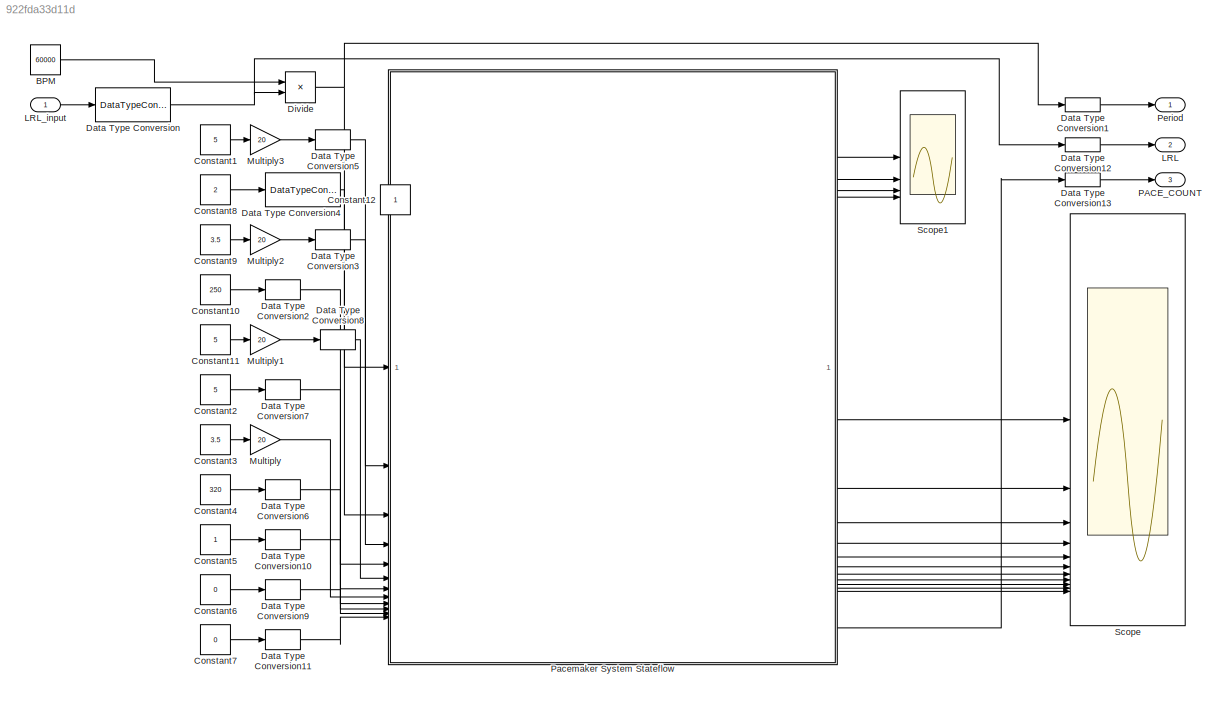
MODEL slx_922fda33d11d
KIND model
CONFIG AbsTol = auto
CONFIG EnableMultiTasking = on
CONFIG FixedStep = 1e-3
CONFIG MaxStep = auto
CONFIG MinStep = auto
CONFIG RelTol = 1e-3
CONFIG SampleTimeConstraint = Unconstrained
CONFIG SolverName = FixedStepAuto
CONFIG StartTime = 0.0
CONFIG StopTime = 50
BLOCK [Constant] BPM
  Value = 60000
BLOCK [Constant] Constant1
  Value = 5
BLOCK [Constant] Constant10
  Value = 250
BLOCK [Constant] Constant11
  Value = 5
BLOCK [Constant] Constant12
  IOType = siggen
BLOCK [Constant] Constant2
  Value = 5
BLOCK [Constant] Constant3
  Value = 3.5
BLOCK [Constant] Constant4
  Value = 320
BLOCK [Constant] Constant5
BLOCK [Constant] Constant6
  Value = 0
BLOCK [Constant] Constant7
  Value = 0
BLOCK [Constant] Constant8
  Value = 2
BLOCK [Constant] Constant9
  Value = 3.5
BLOCK [DataTypeConversion] Data Type Conversion
  OutDataTypeStr = uint16
  RndMeth = Floor
  SaturateOnIntegerOverflow = off
BLOCK [DataTypeConversion] Data Type Conversion1
  OutDataTypeStr = double
  RndMeth = Floor
  SaturateOnIntegerOverflow = off
BLOCK [DataTypeConversion] Data Type Conversion10
  OutDataTypeStr = uint16
  RndMeth = Floor
  SaturateOnIntegerOverflow = off
BLOCK [DataTypeConversion] Data Type Conversion11
  OutDataTypeStr = boolean
  RndMeth = Floor
  SaturateOnIntegerOverflow = off
BLOCK [DataTypeConversion] Data Type Conversion12
  OutDataTypeStr = double
  RndMeth = Floor
  SaturateOnIntegerOverflow = off
BLOCK [DataTypeConversion] Data Type Conversion13
  OutDataTypeStr = double
  RndMeth = Floor
  SaturateOnIntegerOverflow = off
BLOCK [DataTypeConversion] Data Type Conversion2
  OutDataTypeStr = uint16
  RndMeth = Floor
  SaturateOnIntegerOverflow = off
BLOCK [DataTypeConversion] Data Type Conversion3
  OutDataTypeStr = uint16
  RndMeth = Floor
  SaturateOnIntegerOverflow = off
BLOCK [DataTypeConversion] Data Type Conversion4
  OutDataTypeStr = uint16
  RndMeth = Floor
  SaturateOnIntegerOverflow = off
BLOCK [DataTypeConversion] Data Type Conversion5
  OutDataTypeStr = uint16
  RndMeth = Floor
  SaturateOnIntegerOverflow = off
BLOCK [DataTypeConversion] Data Type Conversion6
  OutDataTypeStr = uint16
  RndMeth = Floor
  SaturateOnIntegerOverflow = off
BLOCK [DataTypeConversion] Data Type Conversion7
  OutDataTypeStr = uint16
  RndMeth = Floor
  SaturateOnIntegerOverflow = off
BLOCK [DataTypeConversion] Data Type Conversion8
  OutDataTypeStr = uint16
  RndMeth = Floor
  SaturateOnIntegerOverflow = off
BLOCK [DataTypeConversion] Data Type Conversion9
  OutDataTypeStr = boolean
  RndMeth = Floor
  SaturateOnIntegerOverflow = off
BLOCK [Product] Divide
  Inputs = */
BLOCK [Outport] LRL
  OutDataTypeStr = double
  Port = 2
BLOCK [Inport] LRL_input
  OutDataTypeStr = double
BLOCK [Gain] Multiply
  Gain = 20
BLOCK [Gain] Multiply1
  Gain = 20
BLOCK [Gain] Multiply2
  Gain = 20
BLOCK [Gain] Multiply3
  Gain = 20
BLOCK [Outport] PACE_COUNT
  Port = 3
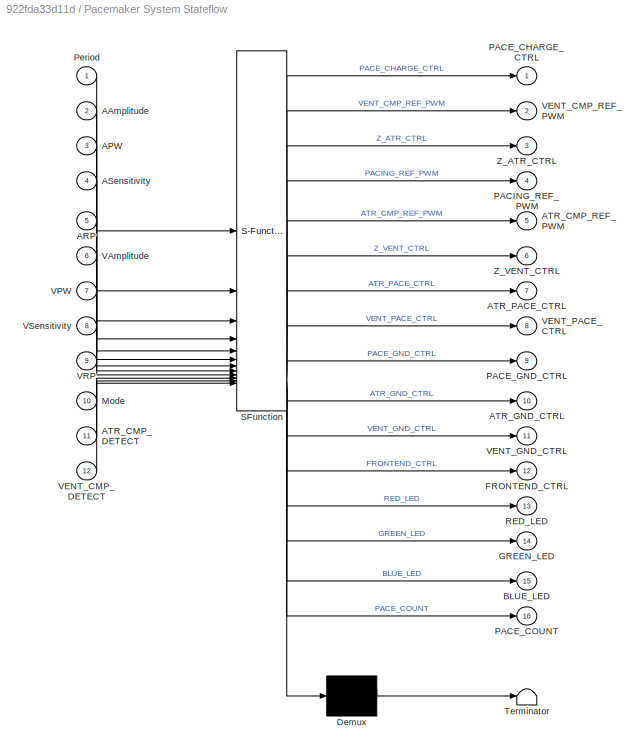
BLOCK [SubSystem] Pacemaker System Stateflow
  ErrorFcn = Stateflow.Translate.translate
  PermitHierarchicalResolution = ExplicitOnly
  SFBlockType = Chart
  TreatAsAtomicUnit = on
BLOCK [Demux] Pacemaker System Stateflow/ Demux 
  Outputs = 1
BLOCK [S-Function] Pacemaker System Stateflow/ SFunction 
  EnableBusSupport = off
  FunctionName = sf_sfun
  PortCounts = [12 17]
  SFcnIsStateOwnerBlock = off
  SFunctionDeploymentMode = off
  Tag = Stateflow S-Function 3
BLOCK [Terminator] Pacemaker System Stateflow/ Terminator 
BLOCK [Inport] Pacemaker System Stateflow/AAmplitude
  Port = 2
BLOCK [Inport] Pacemaker System Stateflow/APW
  Port = 3
BLOCK [Inport] Pacemaker System Stateflow/ARP
  Port = 5
BLOCK [Inport] Pacemaker System Stateflow/ASensitivity
  Port = 4
BLOCK [Inport] Pacemaker System Stateflow/ATR_CMP_DETECT
  Port = 11
BLOCK [Outport] Pacemaker System Stateflow/ATR_CMP_REF_PWM
  Port = 5
BLOCK [Outport] Pacemaker System Stateflow/ATR_GND_CTRL
  Port = 10
BLOCK [Outport] Pacemaker System Stateflow/ATR_PACE_CTRL
  Port = 7
BLOCK [Outport] Pacemaker System Stateflow/BLUE_LED
  Port = 15
BLOCK [Outport] Pacemaker System Stateflow/FRONTEND_CTRL
  Port = 12
BLOCK [Outport] Pacemaker System Stateflow/GREEN_LED
  Port = 14
BLOCK [Inport] Pacemaker System Stateflow/Mode
  Port = 10
BLOCK [Outport] Pacemaker System Stateflow/PACE_CHARGE_CTRL
BLOCK [Outport] Pacemaker System Stateflow/PACE_COUNT
  Port = 16
BLOCK [Outport] Pacemaker System Stateflow/PACE_GND_CTRL
  Port = 9
BLOCK [Outport] Pacemaker System Stateflow/PACING_REF_PWM
  Port = 4
BLOCK [Inport] Pacemaker System Stateflow/Period
BLOCK [Outport] Pacemaker System Stateflow/RED_LED
  Port = 13
BLOCK [Inport] Pacemaker System Stateflow/VAmplitude
  Port = 6
BLOCK [Inport] Pacemaker System Stateflow/VENT_CMP_DETECT
  Port = 12
BLOCK [Outport] Pacemaker System Stateflow/VENT_CMP_REF_PWM
  Port = 2
BLOCK [Outport] Pacemaker System Stateflow/VENT_GND_CTRL
  Port = 11
BLOCK [Outport] Pacemaker System Stateflow/VENT_PACE_CTRL
  Port = 8
BLOCK [Inport] Pacemaker System Stateflow/VPW
  Port = 7
BLOCK [Inport] Pacemaker System Stateflow/VRP
  Port = 9
BLOCK [Inport] Pacemaker System Stateflow/VSensitivity
  Port = 8
BLOCK [Outport] Pacemaker System Stateflow/Z_ATR_CTRL
  Port = 3
BLOCK [Outport] Pacemaker System Stateflow/Z_VENT_CTRL
  Port = 6
BLOCK [Outport] Period
  OutDataTypeStr = double
BLOCK [Scope] Scope
  Floating = off
  NumInputPorts = 11
  ScopeSpecificationString = Simulink.scopes.TimeScopeBlockCfg('CurrentConfiguration', extmgr.ConfigurationSet(extmgr.Configuration('Core','General UI',true),extmgr.Configuration('Core','Source UI',true),extmgr.Configuration('Sources','WiredSimulink',true),extmgr.Configuration('Visuals','Time Domain',true,'SerializedDisplays',{struct('MinYLimReal','-10','MaxYLimReal','10','YLabelReal','','MinYLimMag','0','MaxYLimMag','10','Le...<+1278ch>
BLOCK [Scope] Scope1
  Floating = off
  NumInputPorts = 4
  ScopeSpecificationString = Simulink.scopes.TimeScopeBlockCfg('CurrentConfiguration', extmgr.ConfigurationSet(extmgr.Configuration('Core','General UI',true),extmgr.Configuration('Core','Source UI',true),extmgr.Configuration('Sources','WiredSimulink',true,'DataLoggingVariableName','ScopeData1'),extmgr.Configuration('Visuals','Time Domain',true,'SerializedDisplays',{struct('MinYLimReal','-12.5','MaxYLimReal','112.5','YLabelRea...<+1547ch>
LINE BPM:1 -> Divide:1
LINE Constant10:1 -> Data Type Conversion2:1
LINE Constant11:1 -> Multiply1:1
LINE Constant1:1 -> Multiply3:1
LINE Constant2:1 -> Data Type Conversion7:1
LINE Constant3:1 -> Multiply:1
LINE Constant4:1 -> Data Type Conversion6:1
LINE Constant5:1 -> Data Type Conversion10:1
LINE Constant6:1 -> Data Type Conversion9:1
LINE Constant7:1 -> Data Type Conversion11:1
LINE Constant8:1 -> Data Type Conversion4:1
LINE Constant9:1 -> Multiply2:1
LINE Data Type Conversion10:1 -> Pacemaker System Stateflow:10
LINE Data Type Conversion11:1 -> Pacemaker System Stateflow:12
LINE Data Type Conversion12:1 -> LRL:1
LINE Data Type Conversion13:1 -> PACE_COUNT:1
LINE Data Type Conversion1:1 -> Period:1
LINE Data Type Conversion2:1 -> Pacemaker System Stateflow:5
LINE Data Type Conversion3:1 -> Pacemaker System Stateflow:4
LINE Data Type Conversion4:1 -> Pacemaker System Stateflow:3
LINE Data Type Conversion5:1 -> Pacemaker System Stateflow:2
LINE Data Type Conversion6:1 -> Pacemaker System Stateflow:9
LINE Data Type Conversion7:1 -> Pacemaker System Stateflow:7
LINE Data Type Conversion8:1 -> Pacemaker System Stateflow:6
LINE Data Type Conversion9:1 -> Pacemaker System Stateflow:11
NET Data Type Conversion:1 -> Data Type Conversion12:1, Divide:2
NET Divide:1 -> Data Type Conversion1:1, Pacemaker System Stateflow:1
LINE LRL_input:1 -> Data Type Conversion:1
LINE Multiply1:1 -> Data Type Conversion8:1
LINE Multiply2:1 -> Data Type Conversion3:1
LINE Multiply3:1 -> Data Type Conversion5:1
LINE Multiply:1 -> Pacemaker System Stateflow:8
LINE Pacemaker System Stateflow:1 -> Scope1:1
LINE Pacemaker System Stateflow:10 -> Scope:6
LINE Pacemaker System Stateflow:11 -> Scope:7
LINE Pacemaker System Stateflow:12 -> Scope:8
LINE Pacemaker System Stateflow:13 -> Scope:9
LINE Pacemaker System Stateflow:14 -> Scope:10
LINE Pacemaker System Stateflow:15 -> Scope:11
LINE Pacemaker System Stateflow:16 -> Data Type Conversion13:1
LINE Pacemaker System Stateflow:2 -> Scope1:2
LINE Pacemaker System Stateflow:3 -> Scope1:3
LINE Pacemaker System Stateflow:4 -> Scope1:4
LINE Pacemaker System Stateflow:5 -> Scope:1
LINE Pacemaker System Stateflow:6 -> Scope:2
LINE Pacemaker System Stateflow:7 -> Scope:3
LINE Pacemaker System Stateflow:8 -> Scope:4
LINE Pacemaker System Stateflow:9 -> Scope:5
note: NET lines group one-source signal fan-out (src -> all destinations, sorted); 1:1 wires keep LINE
CHART Pacemaker System Stateflow states=15 transitions=25
  STATE_LABEL 'AOO\nentry: % Initialize pin assigments that do not change during the states\n VENT_PACE_CTRL = 0; VENT_GND_CTRL = 0; PACE_GND_CTRL = 1;\n Z_VENT_CTRL = 0; Z_ATR_CTRL = 0;\n PACING_REF_PWM = AAmplitude; PACE_COUNT = 0;\n'
  STATE_LABEL 'PACE_ATR\nentry:\n% STOP CHARGING C22\nPACE_CHARGE_CTRL = 0;\n% DISCHARGE C22 THROUGH ATR\nATR_GND_CTRL = 0;\nATR_PACE_CTRL = 1;\n% PULSING INDICATOR\nBLUE_LED = 1;\nPACE_COUNT = PACE_COUNT + 1;'
  STATE_LABEL 'CHARGE_CAPACITOR\nentry:\n% DISCONNECT ATRIAL PACING\nATR_PACE_CTRL = 0;\n% DISCONNECT C21 FROM GND (allow charge buildup)\nATR_GND_CTRL = 1;\n% CHARGING C22\nPACE_CHARGE_CTRL = 1;\n% DISABLE PULSING INDICATOR\nBLUE_LED = 0;'
  STATE_LABEL 'after(APW,msec)'
  STATE_LABEL 'after(Period - APW,msec)'
  STATE_LABEL 'PACE_ATR\nentry:\n% STOP CHARGING C22\nPACE_CHARGE_CTRL = 0;\n% DISCHARGE C22 THROUGH ATR\nATR_GND_CTRL = 0;\nATR_PACE_CTRL = 1;\n% PULSING INDICATOR\nBLUE_LED = 1;\nPACE_COUNT = PACE_COUNT + 1;'
  STATE_LABEL 'CHARGE_CAPACITOR\nentry:\n% DISCONNECT ATRIAL PACING\nATR_PACE_CTRL = 0;\n% DISCONNECT C21 FROM GND (allow charge buildup)\nATR_GND_CTRL = 1;\n% CHARGING C22\nPACE_CHARGE_CTRL = 1;\n% DISABLE PULSING INDICATOR\nBLUE_LED = 0;'
  STATE_LABEL 'MODE_ROUTER\nentry: % Reset these pins when swithching between states\n FRONTEND_CTRL = 1;\n ATR_PACE_CTRL = 0;\n ATR_GND_CTRL = 0;\n VENT_GND_CTRL = 0;\n VENT_PACE_CTRL = 0;\n Z_ATR_CTRL = 0;\n Z_VENT_CTRL = 0;\n GREEN_LED = 0;\n RED_LED = 0;\n BLUE_LED = 0;'
  STATE_LABEL 'VOO\nentry: % Initialize pin assigments that do not change during the states\n ATR_PACE_CTRL = 0; ATR_GND_CTRL = 0; PACE_GND_CTRL = 1;\n Z_ATR_CTRL = 0; Z_VENT_CTRL = 0; PACING_REF_PWM = VAmplitude;'
  STATE_LABEL 'PACE_VENT\nentry:\n% STOP CHARGING C22\nPACE_CHARGE_CTRL = 0;\n% DISCHARGE C22 THROUGH VENT\nVENT_GND_CTRL = 0;\nVENT_PACE_CTRL = 1;\n% PULSING INDICATOR\nBLUE_LED = 1;'
  STATE_LABEL 'CHARGE_CAPACITOR\nentry:\n% DISCONNECT VENT PACING\nVENT_PACE_CTRL = 0;\n% DISCONNECT C21 FROM GND (allow charge to buildup)\nVENT_GND_CTRL = 1;\n% CHARGING C22\nPACE_CHARGE_CTRL = 1;\n% DISABLE PULSING INDICATOR\nBLUE_LED = 0;'
  STATE_LABEL 'after(VPW,msec)'
  STATE_LABEL 'after(Period-VPW,msec)'
  STATE_LABEL 'PACE_VENT\nentry:\n% STOP CHARGING C22\nPACE_CHARGE_CTRL = 0;\n% DISCHARGE C22 THROUGH VENT\nVENT_GND_CTRL = 0;\nVENT_PACE_CTRL = 1;\n% PULSING INDICATOR\nBLUE_LED = 1;'
  STATE_LABEL 'CHARGE_CAPACITOR\nentry:\n% DISCONNECT VENT PACING\nVENT_PACE_CTRL = 0;\n% DISCONNECT C21 FROM GND (allow charge to buildup)\nVENT_GND_CTRL = 1;\n% CHARGING C22\nPACE_CHARGE_CTRL = 1;\n% DISABLE PULSING INDICATOR\nBLUE_LED = 0;'
  STATE_LABEL 'AAI\n% Initialize pin assignments that do not change during the states\nentry: VENT_PACE_CTRL = 0; VENT_GND_CTRL = 0; PACE_GND_CTRL = 1;\n Z_VENT_CTRL = 0; Z_ATR_CTRL = 0; FRONTEND_CTRL = 1;\n PACING_REF_PWM = AAmplitude; ATR_CMP_REF_PWM=ASensitivity;'
  STATE_LABEL 'PACE_ATR\nentry:\n% STOP CHARGING C22\nPACE_CHARGE_CTRL = 0;\n% DISCHARGE C22 THROUGH ATR\nATR_PACE_CTRL = 1;\nATR_GND_CTRL = 0;\n% PULSING INDICATOR\nBLUE_LED = 1;\n'
  STATE_LABEL 'C22_CHARGE\nentry:\n% DISCONNECT VENT PACING\nATR_PACE_CTRL = 0;\n% DISCONNECT C21 FROM GND (allow charge to buildup)\nATR_GND_CTRL = 1;\n% CHARGING C22\nPACE_CHARGE_CTRL = 1;\n'
  STATE_LABEL 'REFRACTORY_STATE\n% DISABLE PULSING INDICATORS\nentry: BLUE_LED = 0; PACE_CHARGE_CTRL = 1;\n ATR_PACE_CTRL = 0;  ATR_GND_CTRL = 1;\n % DISABLE INHIBIT INIDCATOR ON EXIT\nexit: GREEN_LED = 0;'
  STATE_LABEL 'after(Period - ARP, msec)'
  STATE_LABEL '[ATR_CMP_DETECT]\n{GREEN_LED = 1}'
  STATE_LABEL 'after(ARP, msec)'
  STATE_LABEL 'after(APW, msec)'
  STATE_LABEL 'PACE_ATR\nentry:\n% STOP CHARGING C22\nPACE_CHARGE_CTRL = 0;\n% DISCHARGE C22 THROUGH ATR\nATR_PACE_CTRL = 1;\nATR_GND_CTRL = 0;\n% PULSING INDICATOR\nBLUE_LED = 1;\n'
  STATE_LABEL 'C22_CHARGE\nentry:\n% DISCONNECT VENT PACING\nATR_PACE_CTRL = 0;\n% DISCONNECT C21 FROM GND (allow charge to buildup)\nATR_GND_CTRL = 1;\n% CHARGING C22\nPACE_CHARGE_CTRL = 1;\n'
  STATE_LABEL 'REFRACTORY_STATE\n% DISABLE PULSING INDICATORS\nentry: BLUE_LED = 0; PACE_CHARGE_CTRL = 1;\n ATR_PACE_CTRL = 0;  ATR_GND_CTRL = 1;\n % DISABLE INHIBIT INIDCATOR ON EXIT\nexit: GREEN_LED = 0;'
  STATE_LABEL 'VVI\n% Initialize pin assignments that do not change during the states\nentry: ATR_PACE_CTRL = 0; ATR_GND_CTRL = 0; PACE_GND_CTRL = 1;\n Z_VENT_CTRL = 0; Z_ATR_CTRL = 0; FRONTEND_CTRL = 1;\n PACING_REF_PWM = VAmplitude; VENT_CMP_REF_PWM = VSensitivity;'
  STATE_LABEL 'PACE_VENT\nentry:\n% STOP CHARGING C22\nPACE_CHARGE_CTRL = 0;\n% DISCHARGE C22 THROUGH VENT\nVENT_PACE_CTRL = 1;\nVENT_GND_CTRL = 0;\n% PULSING INDICATOR\nBLUE_LED = 1;\n'
  STATE_LABEL 'CHARGE_CAPACITOR\nentry:\n% CHARGING C22\nPACE_CHARGE_CTRL = 1;\n% DISCONNECT VENT PACING\nVENT_PACE_CTRL = 0;\n% DISCONNECT FROM GND\nVENT_GND_CTRL = 1;\n'
  STATE_LABEL 'REFRACTORY\n% DISABLE PULSING INDICATOR\nentry: BLUE_LED = 0; PACE_CHARGE_CTRL = 1;\n VENT_PACE_CTRL = 0;  VENT_GND_CTRL = 1;\n % DISABLE INHIBIT INDICATOR ON EXIT (if on)\nexit: GREEN_LED = 0;'
  STATE_LABEL 'after(Period - VRP, msec)'
  STATE_LABEL '[VENT_CMP_DETECT]\n{GREEN_LED = 1}'
  STATE_LABEL 'after(VRP, msec)'
  STATE_LABEL 'after(VPW, msec)'
  STATE_LABEL 'PACE_VENT\nentry:\n% STOP CHARGING C22\nPACE_CHARGE_CTRL = 0;\n% DISCHARGE C22 THROUGH VENT\nVENT_PACE_CTRL = 1;\nVENT_GND_CTRL = 0;\n% PULSING INDICATOR\nBLUE_LED = 1;\n'
  STATE_LABEL 'CHARGE_CAPACITOR\nentry:\n% CHARGING C22\nPACE_CHARGE_CTRL = 1;\n% DISCONNECT VENT PACING\nVENT_PACE_CTRL = 0;\n% DISCONNECT FROM GND\nVENT_GND_CTRL = 1;\n'
  STATE_LABEL 'REFRACTORY\n% DISABLE PULSING INDICATOR\nentry: BLUE_LED = 0; PACE_CHARGE_CTRL = 1;\n VENT_PACE_CTRL = 0;  VENT_GND_CTRL = 1;\n % DISABLE INHIBIT INDICATOR ON EXIT (if on)\nexit: GREEN_LED = 0;'
CHART  states=0 transitions=0
